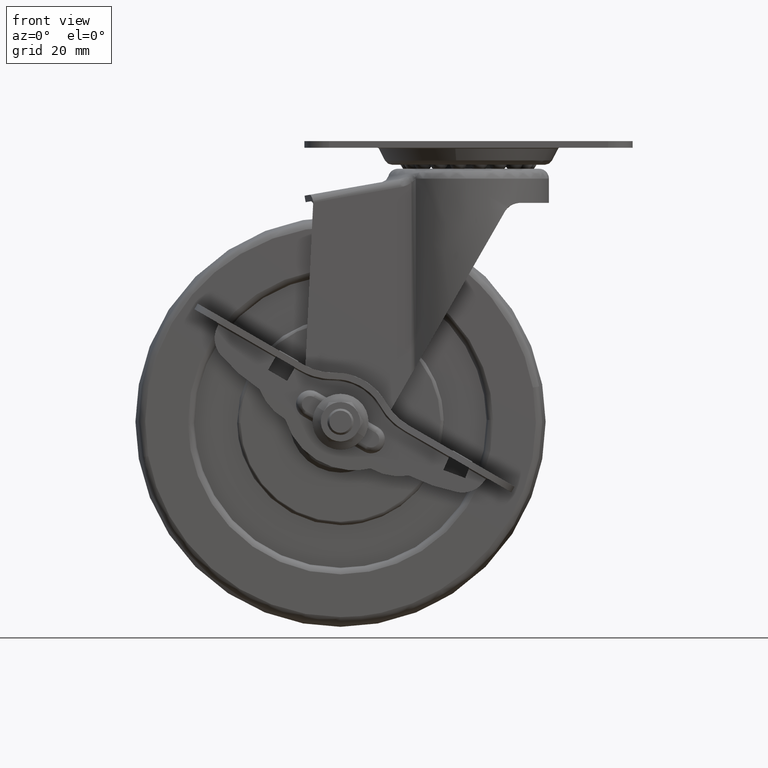
[diagram: clean part render]
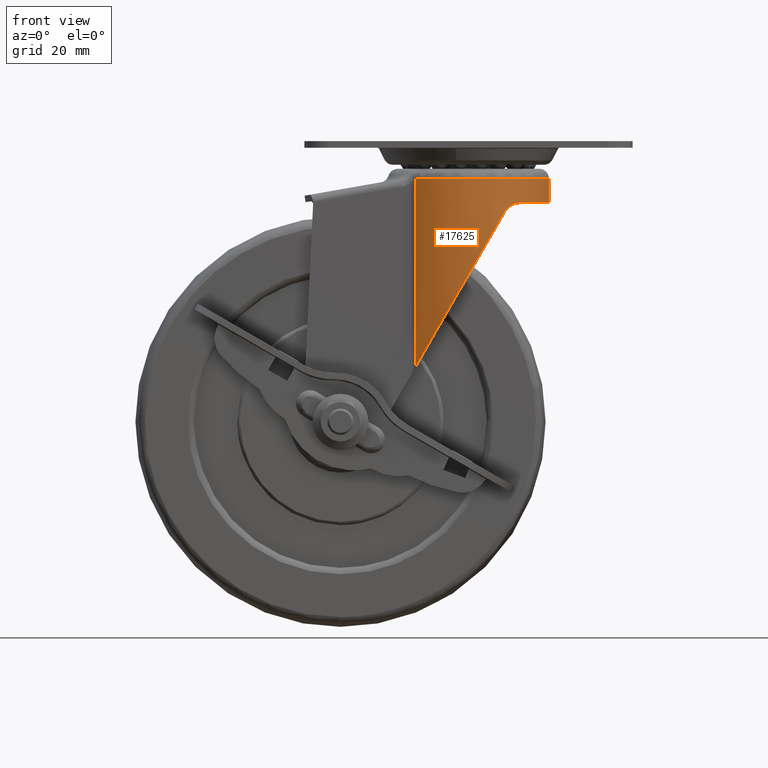
[diagram: same view with one face highlighted and labeled with its STEP entity id]
A machine part, front view. The second image highlights one B-rep face of the part: STEP entity #17625.
In plain terms, the highlighted face is a freeform B-spline surface patch.
Its self-contained STEP definition (entity closure, byte-faithful):
#16044=CARTESIAN_POINT('',(15.500000000000000,18.973665961010301,-16.799999000000000));
#16045=VERTEX_POINT('',#16044);
#16051=CARTESIAN_POINT('',(15.500000000000000,-18.973665961010301,-16.799999000000000));
#16052=VERTEX_POINT('',#16051);
#16053=CARTESIAN_POINT('',(15.500000000000000,-18.973665961010301,-16.799999000000000));
#16054=CARTESIAN_POINT('',(16.769438096547351,-17.936912844772920,-16.799999000000000));
#16055=CARTESIAN_POINT('',(19.179342095378331,-15.526960627754020,-16.799999000000000));
#16056=CARTESIAN_POINT('',(22.036237780395648,-11.146715162383369,-16.799999000000010));
#16057=CARTESIAN_POINT('',(23.818237029071881,-6.409767921118185,-16.799998999999950));
#16058=CARTESIAN_POINT('',(24.564592127913141,-1.759317604345343,-16.799999000000110));
#16059=CARTESIAN_POINT('',(24.496795300901240,2.154349324392874,-16.799998999999978));
#16060=CARTESIAN_POINT('',(23.794848381563721,6.343007336664736,-16.799998999999978));
#16061=CARTESIAN_POINT('',(22.451884685158291,10.150415220894560,-16.799999000000060));
#16062=CARTESIAN_POINT('',(20.415458978441880,13.685976796339000,-16.799998999999911));
#16063=CARTESIAN_POINT('',(18.225157761716119,16.502926107884559,-16.799999000000270));
#16064=CARTESIAN_POINT('',(16.506719942987790,18.151349223300709,-16.799998999999580));
#16065=CARTESIAN_POINT('',(15.500000000000000,18.973665961010301,-16.799999000000000));
#16066=B_SPLINE_CURVE_WITH_KNOTS('',3,(#16053,#16054,#16055,#16056,#16057,#16058,#16059,#16060,#16061,#16062,#16063,#16064,#16065),.UNSPECIFIED.,.F.,.U.,(4,1,1,1,1,1,1,1,1,1,4),(0.000000228452549,4.916991689864631,10.173129843454291,15.598833867158911,20.007255675555900,24.245957574524020,27.297848862181109,32.723579196694118,36.284197406889987,39.505725037193983,43.405368934965530),.UNSPECIFIED.);
#16067=EDGE_CURVE('',#16052,#16045,#16066,.T.);
#17051=CARTESIAN_POINT('',(-16.073237620471151,-18.490566037735849,-9.400001999999999));
#17052=VERTEX_POINT('',#17051);
#17084=CARTESIAN_POINT('',(-16.073237620471200,-18.490566037735849,-66.691913096366306));
#17085=VERTEX_POINT('',#17084);
#17099=CARTESIAN_POINT('',(-16.073237620471151,-18.490566037735849,-9.400001999999999));
#17100=CARTESIAN_POINT('',(-16.073237620471200,-18.490566037735849,-66.691913096366306));
#17101=QUASI_UNIFORM_CURVE('',1,(#17099,#17100),.UNSPECIFIED.,.F.,.U.);
#17102=EDGE_CURVE('',#17052,#17085,#17101,.T.);
#17147=CARTESIAN_POINT('',(-16.073237620471151,18.490566037735849,-9.400001999999999));
#17148=VERTEX_POINT('',#17147);
#17156=CARTESIAN_POINT('',(-16.073237620471151,18.490566037735849,-66.691913096366306));
#17157=VERTEX_POINT('',#17156);
#17158=CARTESIAN_POINT('',(-16.073237620471151,18.490566037735849,-66.691913096366306));
#17159=CARTESIAN_POINT('',(-16.073237620471151,18.490566037735849,-9.400001999999999));
#17160=QUASI_UNIFORM_CURVE('',1,(#17158,#17159),.UNSPECIFIED.,.F.,.U.);
#17161=EDGE_CURVE('',#17157,#17148,#17160,.T.);
#17469=CARTESIAN_POINT('',(-16.587042744742810,-18.031084631382399,-7.967704220863163));
#17470=CARTESIAN_POINT('',(-16.587042744742810,-18.031084631382399,-68.160018318253876));
#17471=CARTESIAN_POINT('',(1.132054773524053,-34.331126139824121,-7.967704220863162));
#17472=CARTESIAN_POINT('',(1.132054773524053,-34.331126139824121,-68.160018318253876));
#17473=CARTESIAN_POINT('',(17.738854598283670,-16.899202275283589,-7.967704220863163));
#17474=CARTESIAN_POINT('',(17.738854598283670,-16.899202275283589,-68.160018318253876));
#17475=CARTESIAN_POINT('',(34.345654423043285,0.532721589256954,-7.967704220863162));
#17476=CARTESIAN_POINT('',(34.345654423043285,0.532721589256954,-68.160018318253876));
#17477=CARTESIAN_POINT('',(17.206214145105061,17.441221138234170,-7.967704220863163));
#17478=CARTESIAN_POINT('',(17.206214145105061,17.441221138234170,-68.160018318253876));
#17479=CARTESIAN_POINT('',(0.066773867166819,34.349720687211381,-7.967704220863162));
#17480=CARTESIAN_POINT('',(0.066773867166819,34.349720687211381,-68.160018318253876));
#17481=CARTESIAN_POINT('',(-17.138274913269061,17.507984835417599,-7.967704220863163));
#17482=CARTESIAN_POINT('',(-17.138274913269061,17.507984835417599,-68.160018318253876));
#17490=(BOUNDED_SURFACE()B_SPLINE_SURFACE(1,2,((#17469,#17471,#17473,#17475,#17477,#17479,#17481),(#17470,#17472,#17474,#17476,#17478,#17480,#17482)),.UNSPECIFIED.,.F.,.F.,.U.)B_SPLINE_SURFACE_WITH_KNOTS((2,2),(3,2,2,3),(0.0,60.192314097390707),(0.0,40.092858539915547,80.185717079831107,120.278575619746700),.UNSPECIFIED.)GEOMETRIC_REPRESENTATION_ITEM()RATIONAL_B_SPLINE_SURFACE(((1.0,0.713250449154182,1.0,0.713250449154182,1.0,0.713250449154182,1.0),(1.0,0.713250449154182,1.0,0.713250449154182,1.0,0.713250449154182,1.0)))REPRESENTATION_ITEM('')SURFACE());
#17491=CARTESIAN_POINT('',(11.165182204572121,21.807997526341651,-19.308141323397699));
#17492=VERTEX_POINT('',#17491);
#17493=CARTESIAN_POINT('',(11.165182204572121,21.807997526341651,-19.308141323397699));
#17494=CARTESIAN_POINT('',(-3.575179205408225,29.354714029851593,-44.950374861182539));
#17495=CARTESIAN_POINT('',(-16.073237620471151,18.490566037735849,-66.691913096366306));
#17503=(BOUNDED_CURVE()B_SPLINE_CURVE(2,(#17493,#17494,#17495),.UNSPECIFIED.,.F.,.U.)CURVE()GEOMETRIC_REPRESENTATION_ITEM()QUASI_UNIFORM_CURVE()RATIONAL_B_SPLINE_CURVE((1.0,0.828496843725567,1.0))REPRESENTATION_ITEM(''));
#17504=EDGE_CURVE('',#17492,#17157,#17503,.T.);
#17505=ORIENTED_EDGE('',*,*,#17504,.T.);
#17506=ORIENTED_EDGE('',*,*,#17161,.T.);
#17507=CARTESIAN_POINT('',(24.500000000000000,1.303388E-015,-9.400001998314460));
#17508=VERTEX_POINT('',#17507);
#17509=CARTESIAN_POINT('',(-16.073237620471151,18.490566037735849,-9.400001999999999));
#17510=CARTESIAN_POINT('',(-14.807307544675281,19.591258182902301,-9.400001999973718));
#17511=CARTESIAN_POINT('',(-11.868229343905510,21.657844044326868,-9.400001999904971));
#17512=CARTESIAN_POINT('',(-7.732402409746041,23.377602282945119,-9.400001999789710));
#17513=CARTESIAN_POINT('',(-3.317098138978638,24.385107781104129,-9.400001999653608));
#17514=CARTESIAN_POINT('',(0.489684996382694,24.627496895319130,-9.400001999526472));
#17515=CARTESIAN_POINT('',(4.920881497829626,24.115489605047429,-9.400001999365980));
#17516=CARTESIAN_POINT('',(8.440863525940733,23.102323867500250,-9.400001999229090));
#17517=CARTESIAN_POINT('',(11.890804066258550,21.511318074307031,-9.400001999085353));
#17518=CARTESIAN_POINT('',(15.401338251084191,19.259078659882949,-9.400001998929534));
#17519=CARTESIAN_POINT('',(18.573541381127189,16.201651267625881,-9.400001998771964));
#17520=CARTESIAN_POINT('',(20.940014205845550,12.859609416692059,-9.400001998638640));
#17521=CARTESIAN_POINT('',(22.668790864490099,9.557670078940825,-9.400001998527179));
#17522=CARTESIAN_POINT('',(24.100008402770619,5.324292914275842,-9.400001998411765));
#17523=CARTESIAN_POINT('',(24.500370709799888,1.896364485178206,-9.400001998344152));
#17524=CARTESIAN_POINT('',(24.500000000000000,1.303388E-015,-9.400001998314460));
#17525=B_SPLINE_CURVE_WITH_KNOTS('',3,(#17509,#17510,#17511,#17512,#17513,#17514,#17515,#17516,#17517,#17518,#17519,#17520,#17521,#17522,#17523,#17524),.UNSPECIFIED.,.F.,.U.,(4,1,1,1,1,1,1,1,1,1,1,1,1,4),(0.000000361610013,5.032610843961955,10.721855573401699,13.347625518406231,18.599165758365899,22.100178509822481,26.695359312822639,29.539813376783620,33.478372266640207,39.167603596791380,42.668639185325759,45.732035165663731,50.327191471733101,56.016252126548032),.UNSPECIFIED.);
#17526=EDGE_CURVE('',#17148,#17508,#17525,.T.);
#17527=ORIENTED_EDGE('',*,*,#17526,.T.);
#17528=CARTESIAN_POINT('',(24.500000000000000,1.303388E-015,-9.400001998314460));
#17529=CARTESIAN_POINT('',(24.500256622384629,-1.750501554204362,-9.400001998341894));
#17530=CARTESIAN_POINT('',(24.185953902487700,-4.667867812970798,-9.400001998398441));
#17531=CARTESIAN_POINT('',(22.887217186217541,-9.087863731724269,-9.400001998512394));
#17532=CARTESIAN_POINT('',(20.739294286814388,-13.424451513491260,-9.400001998654313));
#17533=CARTESIAN_POINT('',(17.539000258130461,-17.356000409624158,-9.400001998825983));
#17534=CARTESIAN_POINT('',(14.186211681701870,-20.078486628255881,-9.400001998984040));
#17535=CARTESIAN_POINT('',(11.051634235946540,-21.954271048711039,-9.400001999121189));
#17536=CARTESIAN_POINT('',(7.615669527193052,-23.410422374369698,-9.400001999262587));
#17537=CARTESIAN_POINT('',(3.267524748303034,-24.433773144141551,-9.400001999427680));
#17538=CARTESIAN_POINT('',(-1.787988260779644,-24.631851523219861,-9.400001999604994));
#17539=CARTESIAN_POINT('',(-6.484017131354332,-23.778548540263259,-9.400001999753004));
#17540=CARTESIAN_POINT('',(-11.466231984910310,-21.861856810150680,-9.400001999894382));
#17541=CARTESIAN_POINT('',(-14.367232905248290,-19.974621509188079,-9.400001999964578));
#17542=CARTESIAN_POINT('',(-16.073237620471151,-18.490566037735849,-9.400001999999999));
#17543=B_SPLINE_CURVE_WITH_KNOTS('',3,(#17528,#17529,#17530,#17531,#17532,#17533,#17534,#17535,#17536,#17537,#17538,#17539,#17540,#17541,#17542),.UNSPECIFIED.,.F.,.U.,(4,1,1,1,1,1,1,1,1,1,1,1,4),(0.000000361621886,5.251461720210571,8.752522649368380,13.785251385131231,19.693280284852150,23.850777072942741,26.695359312827961,30.633770483802792,35.010109452975399,40.042847960538417,45.732035165665309,49.233045536318983,56.016252126548011),.UNSPECIFIED.);
#17544=EDGE_CURVE('',#17508,#17052,#17543,.T.);
#17545=ORIENTED_EDGE('',*,*,#17544,.T.);
#17546=ORIENTED_EDGE('',*,*,#17102,.T.);
#17547=CARTESIAN_POINT('',(11.165182204572121,-21.807997526341651,-19.308141323397699));
#17548=VERTEX_POINT('',#17547);
#17549=CARTESIAN_POINT('',(-16.073237620471200,-18.490566037735849,-66.691913096366306));
#17550=CARTESIAN_POINT('',(-3.575179205408274,-29.354714029851550,-44.950374861182581));
#17551=CARTESIAN_POINT('',(11.165182204572121,-21.807997526341651,-19.308141323397699));
#17559=(BOUNDED_CURVE()B_SPLINE_CURVE(2,(#17549,#17550,#17551),.UNSPECIFIED.,.F.,.U.)CURVE()GEOMETRIC_REPRESENTATION_ITEM()QUASI_UNIFORM_CURVE()RATIONAL_B_SPLINE_CURVE((1.0,0.828496843725570,1.0))REPRESENTATION_ITEM(''));
#17560=EDGE_CURVE('',#17085,#17548,#17559,.T.);
#17561=ORIENTED_EDGE('',*,*,#17560,.T.);
#17562=CARTESIAN_POINT('',(11.165182204572121,-21.807997526341651,-19.308141323397699));
#17563=CARTESIAN_POINT('',(11.287259395550359,-21.745496827640281,-19.095776714922199));
#17564=CARTESIAN_POINT('',(11.422023334333019,-21.675212841902791,-18.897249912535329));
#17565=CARTESIAN_POINT('',(11.713978370390100,-21.518833037212222,-18.525569863398111));
#17566=CARTESIAN_POINT('',(11.871188598479080,-21.432731438510000,-18.352434837881720));
#17567=CARTESIAN_POINT('',(12.080759962625461,-21.314492516742330,-18.151414240905311));
#17568=CARTESIAN_POINT('',(12.123329850290670,-21.290312080624648,-18.111983141425050));
#17569=CARTESIAN_POINT('',(12.209766491124331,-21.240859593258641,-18.034666912373460));
#17570=CARTESIAN_POINT('',(12.253589664051990,-21.215611623086730,-17.996826649901049));
#17571=CARTESIAN_POINT('',(12.385943019474400,-21.138799773317061,-17.886452130768870));
#17572=CARTESIAN_POINT('',(12.475676048271049,-21.085985848968431,-17.816769533668008));
#17573=CARTESIAN_POINT('',(12.748956040835649,-20.922695583943192,-17.618807002426500));
#17574=CARTESIAN_POINT('',(12.936565230511890,-20.807381822826020,-17.501572331910289));
#17575=CARTESIAN_POINT('',(13.224894847705620,-20.624382099253459,-17.346257431880570));
#17576=CARTESIAN_POINT('',(13.322162507296239,-20.561707785315718,-17.297919519207831));
#17577=CARTESIAN_POINT('',(13.469687839506429,-20.465116277525421,-17.230452361661460));
#17578=CARTESIAN_POINT('',(13.519177945225680,-20.432458884123822,-17.208787869155529));
#17579=CARTESIAN_POINT('',(13.618104081867919,-20.366658746825131,-17.167360074507499));
#17580=CARTESIAN_POINT('',(13.667605323008710,-20.333473784133091,-17.147565170448001));
#17581=CARTESIAN_POINT('',(13.915265146368739,-20.166124796442311,-17.053043334133669));
#17582=CARTESIAN_POINT('',(14.113874250976060,-20.027693486865839,-16.991620982946991));
#17583=CARTESIAN_POINT('',(14.511284942992511,-19.741645273741220,-16.894462710965691));
#17584=CARTESIAN_POINT('',(14.710089355515260,-19.594027886385920,-16.858738835584170));
#17585=CARTESIAN_POINT('',(15.008024604012110,-19.365558719220179,-16.823256800586719));
#17586=CARTESIAN_POINT('',(15.107256980630959,-19.288250149531319,-16.814469656907121));
#17587=CARTESIAN_POINT('',(15.304398156653050,-19.132203286492331,-16.802850830395410));
#17588=CARTESIAN_POINT('',(15.402457864079720,-19.053350273677381,-16.799999000000000));
#17589=CARTESIAN_POINT('',(15.500000000000000,-18.973665961010301,-16.799999000000000));
#17590=B_SPLINE_CURVE_WITH_KNOTS('',3,(#17562,#17563,#17564,#17565,#17566,#17567,#17568,#17569,#17570,#17571,#17572,#17573,#17574,#17575,#17576,#17577,#17578,#17579,#17580,#17581,#17582,#17583,#17584,#17585,#17586,#17587,#17588,#17589),.UNSPECIFIED.,.F.,.U.,(4,2,2,2,2,2,2,2,2,2,2,2,2,4),(0.0,0.124999999999995,0.249999999999990,0.281249999999990,0.312499999999990,0.374999999999991,0.499999999999992,0.562499999999993,0.593749999999993,0.624999999999993,0.749999999999995,0.874999999999997,0.937499999999999,1.0),.UNSPECIFIED.);
#17591=EDGE_CURVE('',#17548,#16052,#17590,.T.);
#17592=ORIENTED_EDGE('',*,*,#17591,.T.);
#17593=ORIENTED_EDGE('',*,*,#16067,.T.);
#17594=CARTESIAN_POINT('',(15.500000000000000,18.973665961010301,-16.799999000000000));
#17595=CARTESIAN_POINT('',(15.304671474014810,19.133234122918552,-16.799999000000000));
#17596=CARTESIAN_POINT('',(15.108535372268850,19.288433317499958,-16.811410551379328));
#17597=CARTESIAN_POINT('',(14.715008261181220,19.590304655179079,-16.858031048418098));
#17598=CARTESIAN_POINT('',(14.517615889853150,19.736976753724779,-16.893233683888180));
#17599=CARTESIAN_POINT('',(14.122057575644551,20.021910904710900,-16.989313073603611));
#17600=CARTESIAN_POINT('',(13.923888953801900,20.160173563367170,-17.050174994862310));
#17601=CARTESIAN_POINT('',(13.676108153830370,20.327755965521909,-17.144225362318060));
#17602=CARTESIAN_POINT('',(13.626549064981830,20.361009869835321,-17.163937778092169));
#17603=CARTESIAN_POINT('',(13.527438009673959,20.426991562811750,-17.205232275397002));
#17604=CARTESIAN_POINT('',(13.477796460248710,20.459777672873859,-17.226856543182340));
#17605=CARTESIAN_POINT('',(13.329771870634429,20.556778042061261,-17.294239772895910));
#17606=CARTESIAN_POINT('',(13.232217426873580,20.619686559671429,-17.342519979218199));
#17607=CARTESIAN_POINT('',(12.943159315831631,20.803287481340920,-17.497628282067339));
#17608=CARTESIAN_POINT('',(12.755240517497761,20.918867095180840,-17.614682038777751));
#17609=CARTESIAN_POINT('',(12.481733348493041,21.082401364385849,-17.812178531238771));
#17610=CARTESIAN_POINT('',(12.391964096037370,21.135270744176712,-17.881673049486331));
#17611=CARTESIAN_POINT('',(12.259611441602869,21.212132477704071,-17.991695788685760));
#17612=CARTESIAN_POINT('',(12.215877852682089,21.237345781998791,-18.029334378838499));
#17613=CARTESIAN_POINT('',(12.129217996426490,21.286958436889272,-18.106599664947272));
#17614=CARTESIAN_POINT('',(12.086219042768320,21.311398401070939,-18.146299372336038));
#17615=CARTESIAN_POINT('',(11.874869275918620,21.430707338849381,-18.348453038592591));
#17616=CARTESIAN_POINT('',(11.716559023286230,21.517435382162049,-18.522503273093779));
#17617=CARTESIAN_POINT('',(11.422938023827800,21.674738105554269,-18.895869266910200));
#17618=CARTESIAN_POINT('',(11.287609090897510,21.745317791709390,-19.095168387396921));
#17619=CARTESIAN_POINT('',(11.165182204572121,21.807997526341651,-19.308141323397699));
#17620=B_SPLINE_CURVE_WITH_KNOTS('',3,(#17594,#17595,#17596,#17597,#17598,#17599,#17600,#17601,#17602,#17603,#17604,#17605,#17606,#17607,#17608,#17609,#17610,#17611,#17612,#17613,#17614,#17615,#17616,#17617,#17618,#17619),.UNSPECIFIED.,.F.,.U.,(4,2,2,2,2,2,2,2,2,2,2,2,4),(0.0,0.124999999999997,0.249999999999994,0.374999999999991,0.406249999999991,0.437499999999991,0.499999999999990,0.624999999999989,0.687499999999988,0.718749999999989,0.749999999999989,0.874999999999994,1.0),.UNSPECIFIED.);
#17621=EDGE_CURVE('',#16045,#17492,#17620,.T.);
#17622=ORIENTED_EDGE('',*,*,#17621,.T.);
#17623=EDGE_LOOP('',(#17505,#17506,#17527,#17545,#17546,#17561,#17592,#17593,#17622));
#17624=FACE_OUTER_BOUND('',#17623,.T.);
#17625=ADVANCED_FACE('',(#17624),#17490,.T.);